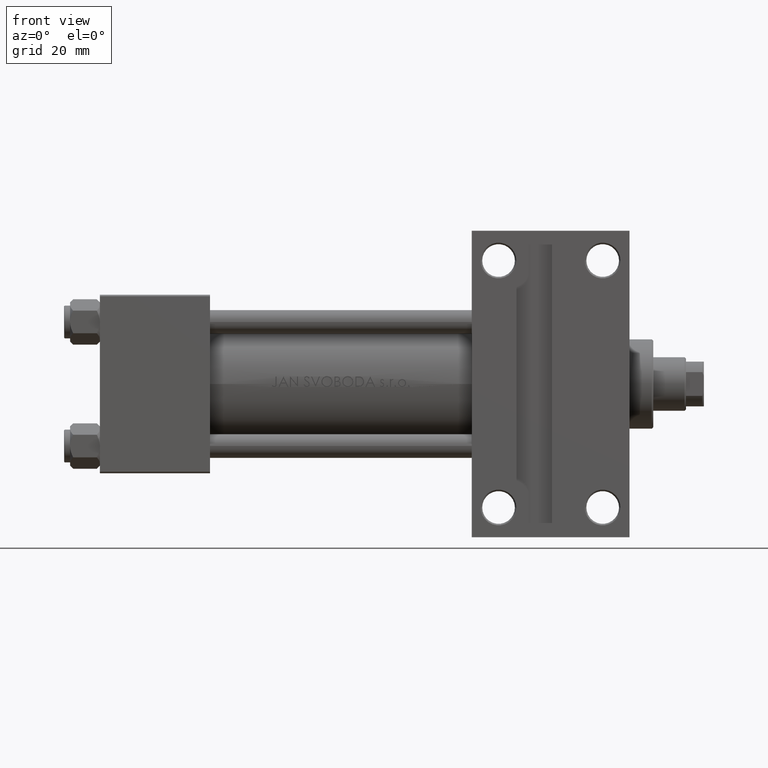
[diagram: clean part render]
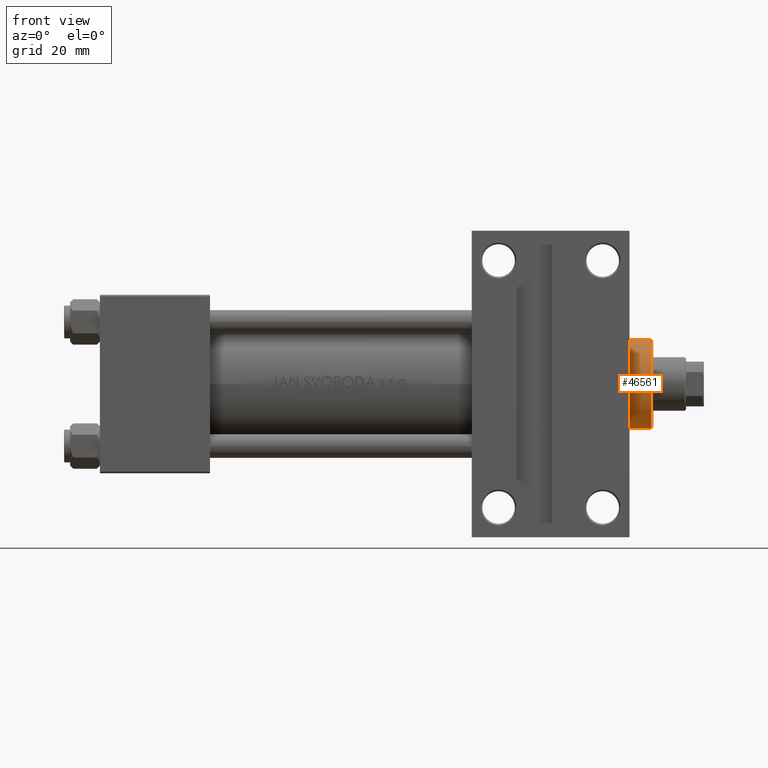
[diagram: same view with one face highlighted and labeled with its STEP entity id]
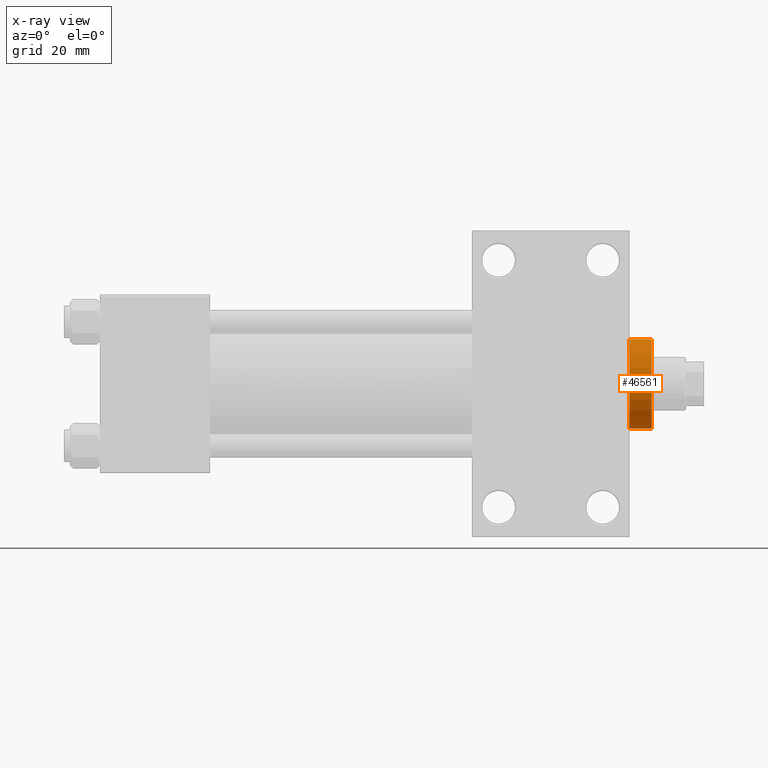
[diagram: x-ray of the same camera — body ghosted, the highlighted face saturated]
A machine part, front view. The second image highlights one B-rep face of the part: STEP entity #46561.
The next image is the same camera in x-ray: the body ghosted, the highlighted face saturated — about 0% of this face is hidden behind the body in this view.
In plain terms, the highlighted cylindrical surface (partial cylindrical patch) has radius 15 mm, axis along (-1, 0, 0).
Its self-contained STEP definition (entity closure, byte-faithful):
#1325 = VERTEX_POINT ( 'NONE', #7528 ) ;
#1373 = DIRECTION ( 'NONE',  ( 1.000000000000000000, 0.000000000000000000, 0.000000000000000000 ) ) ;
#1556 = EDGE_LOOP ( 'NONE', ( #39743, #16151, #47015, #12892 ) ) ;
#3652 = AXIS2_PLACEMENT_3D ( 'NONE', #28231, #47215, #1373 ) ;
#4061 = LINE ( 'NONE', #11218, #44412 ) ;
#4726 = VERTEX_POINT ( 'NONE', #22367 ) ;
#6223 = CYLINDRICAL_SURFACE ( 'NONE', #42526, 15.00000000000000000 ) ;
#7528 = CARTESIAN_POINT ( 'NONE',  ( 15.00000000000000000, 1.836970198721029589E-15, 36.20000000000000284 ) ) ;
#9499 = CARTESIAN_POINT ( 'NONE',  ( 15.00000000000000000, 1.836970198721029589E-15, 28.69999999999999929 ) ) ;
#10883 = FACE_OUTER_BOUND ( 'NONE', #1556, .T. ) ;
#11218 = CARTESIAN_POINT ( 'NONE',  ( -15.00000000000000000, 0.000000000000000000, 36.69999999999999574 ) ) ;
#12892 = ORIENTED_EDGE ( 'NONE', *, *, #24054, .F. ) ;
#14759 = LINE ( 'NONE', #22879, #31927 ) ;
#16151 = ORIENTED_EDGE ( 'NONE', *, *, #26658, .T. ) ;
#19705 = AXIS2_PLACEMENT_3D ( 'NONE', #39285, #20570, #24664 ) ;
#20570 = DIRECTION ( 'NONE',  ( 0.000000000000000000, 0.000000000000000000, -1.000000000000000000 ) ) ;
#21264 = DIRECTION ( 'NONE',  ( -1.000000000000000000, 0.000000000000000000, 0.000000000000000000 ) ) ;
#22218 = CARTESIAN_POINT ( 'NONE',  ( -15.00000000000000000, 0.000000000000000000, 28.69999999999999929 ) ) ;
#22367 = CARTESIAN_POINT ( 'NONE',  ( -15.00000000000000000, 0.000000000000000000, 36.20000000000000284 ) ) ;
#22879 = CARTESIAN_POINT ( 'NONE',  ( 15.00000000000000000, 1.836970198721029589E-15, 36.69999999999999574 ) ) ;
#24054 = EDGE_CURVE ( 'NONE', #4726, #46607, #4061, .T. ) ;
#24664 = DIRECTION ( 'NONE',  ( 1.000000000000000000, 0.000000000000000000, 0.000000000000000000 ) ) ;
#26658 = EDGE_CURVE ( 'NONE', #1325, #47540, #14759, .T. ) ;
#28231 = CARTESIAN_POINT ( 'NONE',  ( 0.000000000000000000, 0.000000000000000000, 28.69999999999999929 ) ) ;
#28643 = CARTESIAN_POINT ( 'NONE',  ( 0.000000000000000000, 0.000000000000000000, 36.69999999999999574 ) ) ;
#29215 = EDGE_CURVE ( 'NONE', #47540, #46607, #41438, .T. ) ;
#29705 = DIRECTION ( 'NONE',  ( -0.000000000000000000, -0.000000000000000000, -1.000000000000000000 ) ) ;
#29780 = DIRECTION ( 'NONE',  ( -0.000000000000000000, -0.000000000000000000, -1.000000000000000000 ) ) ;
#31927 = VECTOR ( 'NONE', #29780, 1000.000000000000000 ) ;
#39285 = CARTESIAN_POINT ( 'NONE',  ( 0.000000000000000000, 0.000000000000000000, 36.20000000000000284 ) ) ;
#39743 = ORIENTED_EDGE ( 'NONE', *, *, #41952, .T. ) ;
#40704 = DIRECTION ( 'NONE',  ( -0.000000000000000000, -0.000000000000000000, -1.000000000000000000 ) ) ;
#41438 = CIRCLE ( 'NONE', #3652, 15.00000000000000000 ) ;
#41952 = EDGE_CURVE ( 'NONE', #4726, #1325, #42529, .T. ) ;
#42526 = AXIS2_PLACEMENT_3D ( 'NONE', #28643, #40704, #21264 ) ;
#42529 = CIRCLE ( 'NONE', #19705, 15.00000000000000000 ) ;
#44412 = VECTOR ( 'NONE', #29705, 1000.000000000000000 ) ;
#46561 = ADVANCED_FACE ( 'NONE', ( #10883 ), #6223, .T. ) ;
#46607 = VERTEX_POINT ( 'NONE', #22218 ) ;
#47015 = ORIENTED_EDGE ( 'NONE', *, *, #29215, .T. ) ;
#47215 = DIRECTION ( 'NONE',  ( 0.000000000000000000, 0.000000000000000000, 1.000000000000000000 ) ) ;
#47540 = VERTEX_POINT ( 'NONE', #9499 ) ;